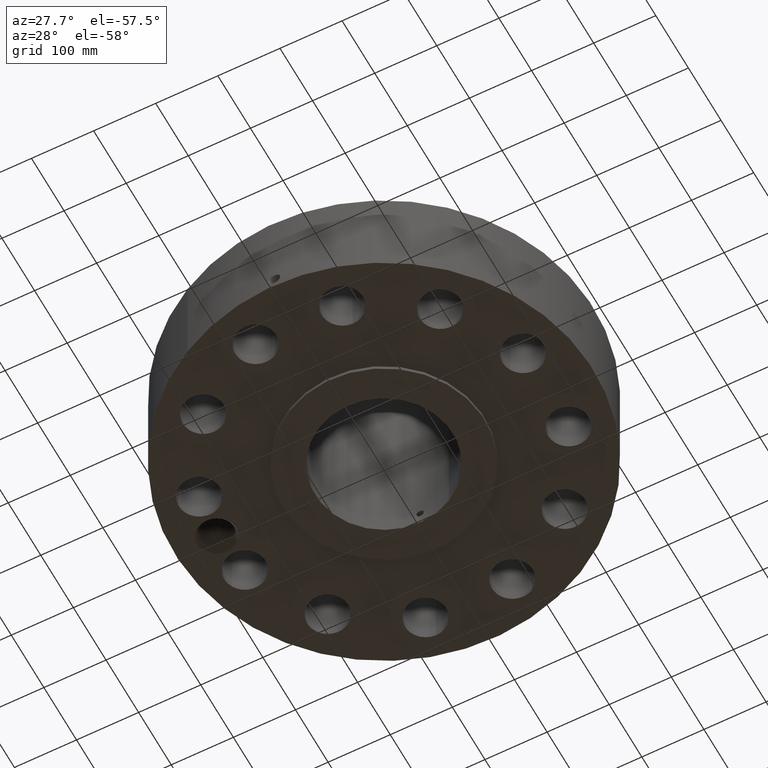
[diagram: clean part render]
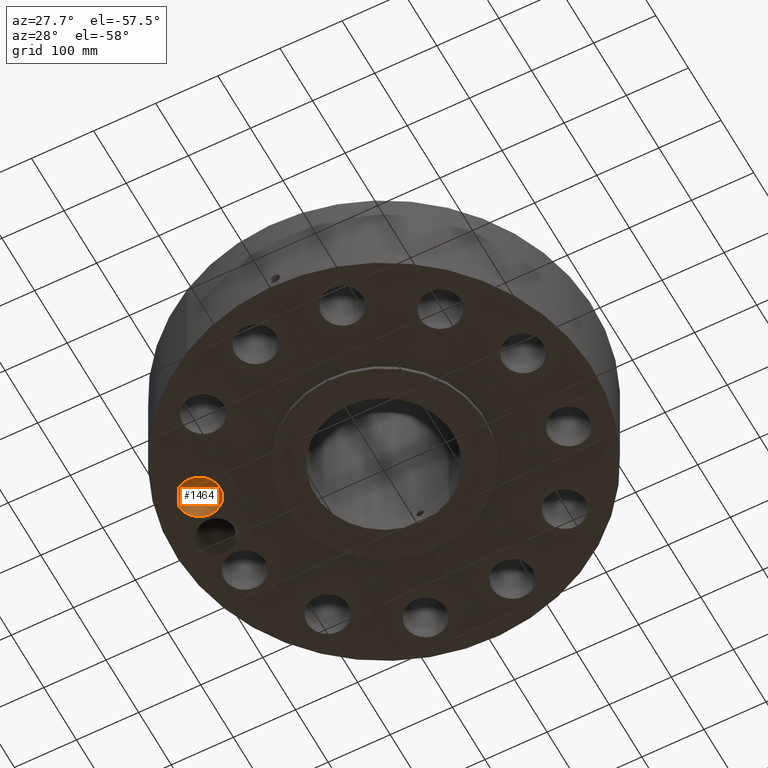
[diagram: same view with one face highlighted and labeled with its STEP entity id]
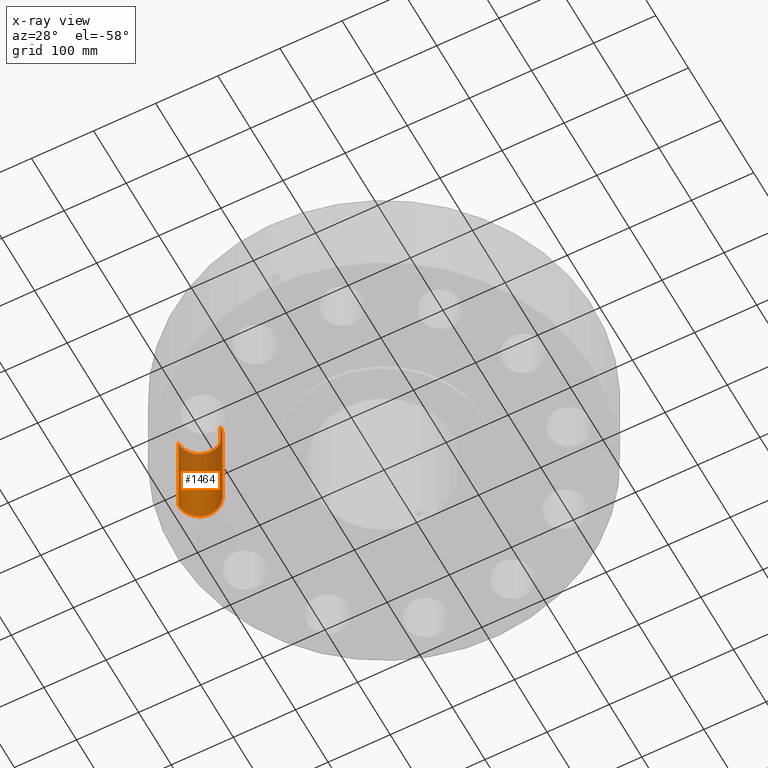
[diagram: x-ray of the same camera — body ghosted, the highlighted face saturated]
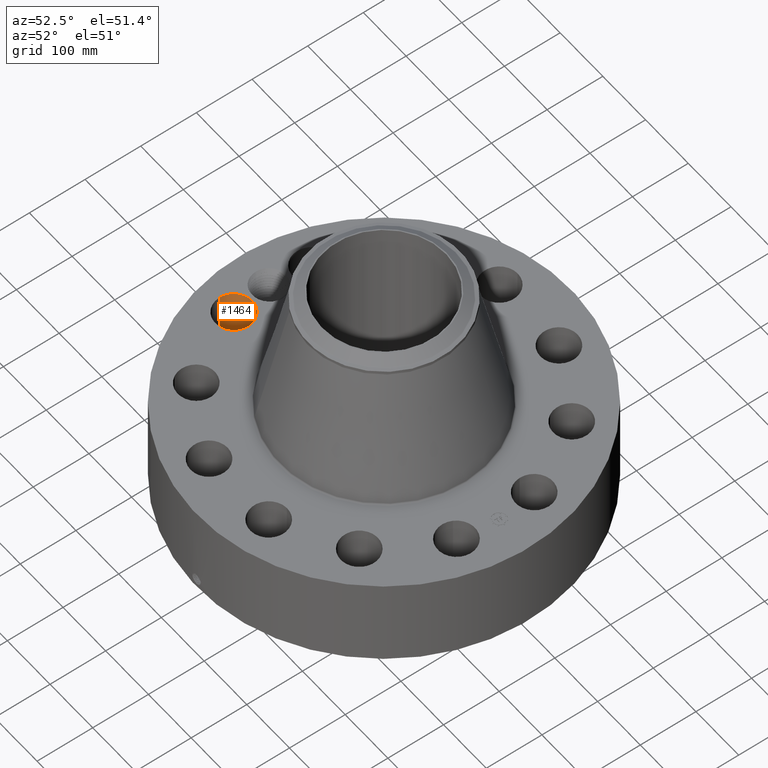
[diagram: same view with one face highlighted and labeled with its STEP entity id]
A machine part, auxiliary view. The second image highlights one B-rep face of the part: STEP entity #1464.
The next image is the same camera in x-ray: the body ghosted, the highlighted face saturated — about 40% of this face is hidden behind the body in this view.
A second angle (auxiliary view) of the same face is appended — the face is thin or edge-on in the first view.
In plain terms, the highlighted cylindrical surface (edge-blend (fillet) strip) has radius 33.274 mm, axis along (-0, 0, -1).
Its self-contained STEP definition (entity closure, byte-faithful):
#356=AXIS2_PLACEMENT_3D('Circle Axis2P3D',#354,#355,$) ;
#751=AXIS2_PLACEMENT_3D('Circle Axis2P3D',#749,#750,$) ;
#1439=AXIS2_PLACEMENT_3D('Cylinder Axis2P3D',#1436,#1437,#1438) ;
#349=CARTESIAN_POINT('Vertex',(-8.95332665838,-2.71904082749,0.250000000001)) ;
#351=CARTESIAN_POINT('Vertex',(-11.5725971503,-2.78086388096,0.250000000001)) ;
#354=CARTESIAN_POINT('Axis2P3D Location',(-10.2629619044,-2.74995235423,0.250000000001)) ;
#749=CARTESIAN_POINT('Axis2P3D Location',(-10.2629619044,-2.74995235423,6.75000000003)) ;
#753=CARTESIAN_POINT('Vertex',(-11.5725971503,-2.78086388096,6.75000000003)) ;
#755=CARTESIAN_POINT('Vertex',(-8.95332665838,-2.71904082749,6.75000000003)) ;
#1436=CARTESIAN_POINT('Axis2P3D Location',(-10.2629619044,-2.74995235423,6.74606299215)) ;
#1441=CARTESIAN_POINT('Line Origine',(-8.95332665838,-2.71904082749,3.50000000001)) ;
#1446=CARTESIAN_POINT('Line Origine',(-11.5725971503,-2.78086388096,3.50000000001)) ;
#355=DIRECTION('Axis2P3D Direction',(0.,0.,-0.0393700787402)) ;
#750=DIRECTION('Axis2P3D Direction',(0.,0.,-0.0393700787402)) ;
#1437=DIRECTION('Axis2P3D Direction',(-0.,0.,-0.0393700787402)) ;
#1438=DIRECTION('Axis2P3D XDirection',(-0.039359116607,-0.000928999420902,0.)) ;
#1442=DIRECTION('Vector Direction',(0.,0.,-0.0393700787402)) ;
#1447=DIRECTION('Vector Direction',(0.,0.,-0.0393700787402)) ;
#1443=VECTOR('Line Direction',#1442,0.0393700787402) ;
#1448=VECTOR('Line Direction',#1447,0.0393700787402) ;
#1459=ORIENTED_EDGE('',*,*,#1450,.F.) ;
#1460=ORIENTED_EDGE('',*,*,#358,.T.) ;
#1461=ORIENTED_EDGE('',*,*,#1445,.T.) ;
#1462=ORIENTED_EDGE('',*,*,#757,.F.) ;
#1464=ADVANCED_FACE('PartBody',(#1463),#1440,.F.) ;
#357=CIRCLE('generated circle',#356,1.31000000001) ;
#752=CIRCLE('generated circle',#751,1.31000000001) ;
#1440=CYLINDRICAL_SURFACE('generated cylinder',#1439,1.31000000001) ;
#358=EDGE_CURVE('',#352,#350,#357,.T.) ;
#757=EDGE_CURVE('',#754,#756,#752,.T.) ;
#1445=EDGE_CURVE('',#350,#756,#1444,.F.) ;
#1450=EDGE_CURVE('',#352,#754,#1449,.F.) ;
#1458=EDGE_LOOP('',(#1459,#1460,#1461,#1462)) ;
#1463=FACE_OUTER_BOUND('',#1458,.T.) ;
#1444=LINE('Line',#1441,#1443) ;
#1449=LINE('Line',#1446,#1448) ;
#350=VERTEX_POINT('',#349) ;
#352=VERTEX_POINT('',#351) ;
#754=VERTEX_POINT('',#753) ;
#756=VERTEX_POINT('',#755) ;